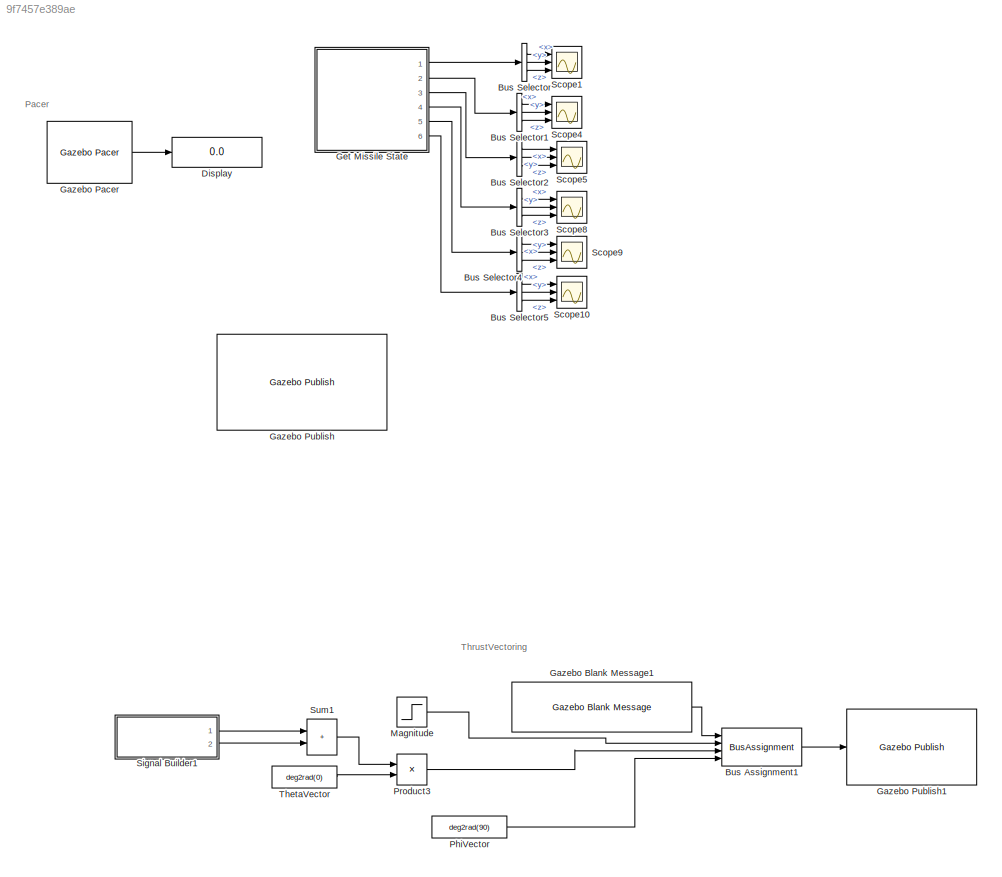
MODEL slx_9f7457e389ae
KIND model
CONFIG AbsTol = auto
CONFIG EnableMultiTasking = off
CONFIG FixedStep = auto
CONFIG MaxStep = auto
CONFIG MinStep = auto
CONFIG RelTol = 1e-3
CONFIG SampleTimeConstraint = Unconstrained
CONFIG SolverName = VariableStepAuto
CONFIG StartTime = 0.0
CONFIG StopTime = 10.0
BLOCK [BusAssignment] Bus Assignment1
  AssignedSignals = r,theta,phi
  Ports = [4, 1]
BLOCK [BusSelector] Bus Selector
  OutputSignals = x,y,z
  Ports = [1, 3]
BLOCK [BusSelector] Bus Selector1
  OutputSignals = x,y,z
  Ports = [1, 3]
BLOCK [BusSelector] Bus Selector2
  OutputSignals = x,y,z
  Ports = [1, 3]
BLOCK [BusSelector] Bus Selector3
  OutputSignals = x,y,z
  Ports = [1, 3]
BLOCK [BusSelector] Bus Selector4
  OutputSignals = x,y,z
  Ports = [1, 3]
BLOCK [BusSelector] Bus Selector5
  OutputSignals = x,y,z
  Ports = [1, 3]
BLOCK [Display] Display
  Decimation = 1
  Ports = [1]
BLOCK [Reference] Gazebo Blank Message1  REF=robotgazebolib/Gazebo Blank Message
  Ports = [0, 1]
  SourceBlock = robotgazebolib/Gazebo Blank Message
  SourceProductBaseCode = RO
  SourceType = Gazebo Blank Message
BLOCK [Reference] Gazebo Pacer  REF=robotgazebolib/Gazebo Pacer
  Ports = [0, 1]
  SourceBlock = robotgazebolib/Gazebo Pacer
  SourceProductBaseCode = RO
  SourceType = Gazebo Pacer
BLOCK [Reference] Gazebo Publish  REF=robotgazebolib/Gazebo Publish
  Ports = [1]
  SourceBlock = robotgazebolib/Gazebo Publish
  SourceProductBaseCode = RO
  SourceType = Gazebo Publish
BLOCK [Reference] Gazebo Publish1  REF=robotgazebolib/Gazebo Publish
  Ports = [1]
  SourceBlock = robotgazebolib/Gazebo Publish
  SourceProductBaseCode = RO
  SourceType = Gazebo Publish
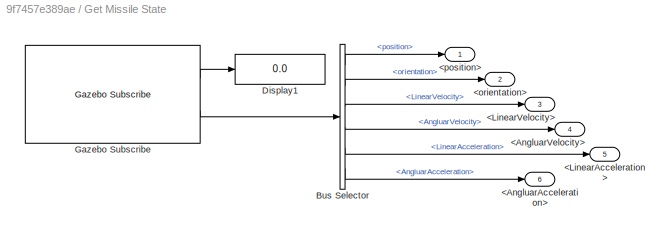
BLOCK [SubSystem] Get Missile State
  Ports = [0, 6]
  RequestExecContextInheritance = off
BLOCK [Outport] Get Missile State/<AngluarAcceleration>
  Port = 6
BLOCK [Outport] Get Missile State/<AngluarVelocity>
  Port = 4
BLOCK [Outport] Get Missile State/<LinearAcceleration>
  Port = 5
BLOCK [Outport] Get Missile State/<LinearVelocity>
  Port = 3
BLOCK [Outport] Get Missile State/<orientation>
  Port = 2
BLOCK [Outport] Get Missile State/<position>
BLOCK [BusSelector] Get Missile State/Bus Selector
  OutputSignals = Pose.position,Pose.orientation,LinearVelocity,AngluarVelocity,LinearAcceleration,AngluarAcceleration
  Ports = [1, 6]
BLOCK [Display] Get Missile State/Display1
  Decimation = 1
  Ports = [1]
BLOCK [Reference] Get Missile State/Gazebo Subscribe  REF=robotgazebolib/Gazebo Subscribe
  Ports = [0, 2]
  SourceBlock = robotgazebolib/Gazebo Subscribe
  SourceProductBaseCode = RO
  SourceType = Gazebo Subscribe
BLOCK [Step] Magnitude
  After = 16000
  Before = 80000
  SampleTime = 0
  Time = 2
BLOCK [Constant] PhiVector
  Value = deg2rad(90)
BLOCK [Product] Product3
  Ports = [2, 1]
BLOCK [Scope] Scope1
  Floating = off
  NumInputPorts = 3
  Ports = [3]
  ScopeSpecificationString = Simulink.scopes.TimeScopeBlockCfg('CurrentConfiguration', extmgr.ConfigurationSet(extmgr.Configuration('Core','General UI',true),extmgr.Configuration('Core','Source UI',true),extmgr.Configuration('Sources','WiredSimulink',true,'DataLoggingVariableName','ScopeData1'),extmgr.Configuration('Visuals','Time Domain',true,'SerializedDisplays',{struct('MinYLimReal','-18344.77689','MaxYLimReal','-14897.008...<+2799ch>
BLOCK [Scope] Scope10
  Floating = off
  NumInputPorts = 3
  Ports = [3]
  ScopeSpecificationString = Simulink.scopes.TimeScopeBlockCfg('CurrentConfiguration', extmgr.ConfigurationSet(extmgr.Configuration('Core','General UI',true),extmgr.Configuration('Core','Source UI',true),extmgr.Configuration('Sources','WiredSimulink',true,'DataLoggingVariableName','ScopeData2'),extmgr.Configuration('Visuals','Time Domain',true,'SerializedDisplays',{struct('MinYLimReal','-37382957417577345706599823385940960826...<+4277ch>
BLOCK [Scope] Scope4
  Floating = off
  NumInputPorts = 3
  Ports = [3]
  ScopeSpecificationString = Simulink.scopes.TimeScopeBlockCfg('CurrentConfiguration', extmgr.ConfigurationSet(extmgr.Configuration('Core','General UI',true),extmgr.Configuration('Core','Source UI',true),extmgr.Configuration('Sources','WiredSimulink',true,'DataLoggingVariableName','ScopeData3'),extmgr.Configuration('Visuals','Time Domain',true,'SerializedDisplays',{struct('MinYLimReal','-0.00028','MaxYLimReal','0.00072','YLab...<+2784ch>
BLOCK [Scope] Scope5
  Floating = off
  NumInputPorts = 3
  Ports = [3]
  ScopeSpecificationString = Simulink.scopes.TimeScopeBlockCfg('CurrentConfiguration', extmgr.ConfigurationSet(extmgr.Configuration('Core','General UI',true),extmgr.Configuration('Core','Source UI',true),extmgr.Configuration('Sources','WiredSimulink',true,'DataLoggingVariableName','ScopeData4'),extmgr.Configuration('Visuals','Time Domain',true,'SerializedDisplays',{struct('MinYLimReal','-14568981323694940144133497020447639315...<+3502ch>
BLOCK [Scope] Scope8
  Floating = off
  NumInputPorts = 3
  Ports = [3]
  ScopeSpecificationString = Simulink.scopes.TimeScopeBlockCfg('CurrentConfiguration', extmgr.ConfigurationSet(extmgr.Configuration('Core','General UI',true),extmgr.Configuration('Core','Source UI',true),extmgr.Configuration('Sources','WiredSimulink',true,'DataLoggingVariableName','ScopeData5'),extmgr.Configuration('Visuals','Time Domain',true,'SerializedDisplays',{struct('MinYLimReal','-33327342911671942417708480477802089603...<+3527ch>
BLOCK [Scope] Scope9
  Floating = off
  NumInputPorts = 3
  Ports = [3]
  ScopeSpecificationString = Simulink.scopes.TimeScopeBlockCfg('CurrentConfiguration', extmgr.ConfigurationSet(extmgr.Configuration('Core','General UI',true),extmgr.Configuration('Core','Source UI',true),extmgr.Configuration('Sources','WiredSimulink',true),extmgr.Configuration('Visuals','Time Domain',true,'SerializedDisplays',{struct('MinYLimReal','-37382957417577345706599823385940960826738676095089848259891126199716039791326...<+4238ch>
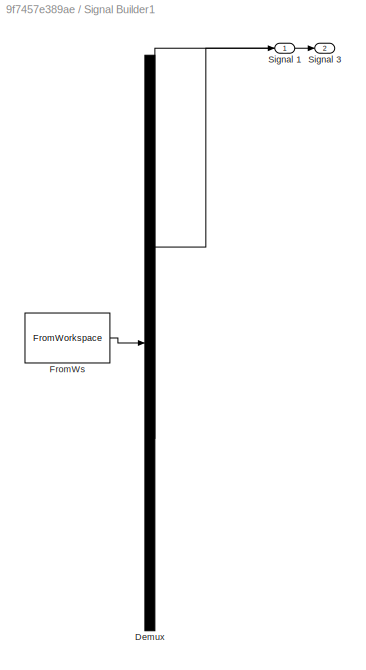
BLOCK [SubSystem] Signal Builder1
  ClipboardFcn = sigbuilder_block('clipboard');
  CloseFcn = sigbuilder_block('close');
  ContinueFcn = sigbuilder_block('continue');
  CopyFcn = sigbuilder_block('copy');
  DeleteFcn = sigbuilder_block('delete');
  LoadFcn = sigbuilder_block('load');
  MaskHideContents = on
  ModelCloseFcn = sigbuilder_block('modelClose');
  NameChangeFcn = sigbuilder_block('namechange');
  OpenFcn = sigbuilder_block('open',[40.5 0 1399.5 658.5 ]);
  PauseFcn = sigbuilder_block('pause');
  Ports = [0, 2]
  PreSaveFcn = sigbuilder_block('preSave');
  RequestExecContextInheritance = off
  StartFcn = sigbuilder_block('start');
  StopFcn = sigbuilder_block('stop');
  Tag = STV Subsys
BLOCK [Demux] Signal Builder1/Demux
  DisplayOption = none
  Outputs = 2
  Ports = [1, 2]
  Tag = STV Demux
BLOCK [FromWorkspace] Signal Builder1/FromWs
  Tag = STV FromWs
  VariableName = tuvar
BLOCK [Outport] Signal Builder1/Signal 1
  Tag = STV Outport
BLOCK [Outport] Signal Builder1/Signal 3
  Port = 2
  Tag = STV Outport
BLOCK [Sum] Sum1
  IconShape = rectangular
  Ports = [2, 1]
BLOCK [Constant] ThetaVector
  Value = deg2rad(0)
ANNOTATION (root): Pacer
ANNOTATION (root): ThrustVectoring
LINE Bus Assignment1:1 -> Gazebo Publish1:1
LINE Bus Selector1:1 -> Scope4:1
LINE Bus Selector1:2 -> Scope4:2
LINE Bus Selector1:3 -> Scope4:3
LINE Bus Selector2:1 -> Scope5:1
LINE Bus Selector2:2 -> Scope5:2
LINE Bus Selector2:3 -> Scope5:3
LINE Bus Selector3:1 -> Scope8:1
LINE Bus Selector3:2 -> Scope8:2
LINE Bus Selector3:3 -> Scope8:3
LINE Bus Selector4:1 -> Scope9:1
LINE Bus Selector4:2 -> Scope9:2
LINE Bus Selector4:3 -> Scope9:3
LINE Bus Selector5:1 -> Scope10:1
LINE Bus Selector5:2 -> Scope10:2
LINE Bus Selector5:3 -> Scope10:3
LINE Bus Selector:1 -> Scope1:1
LINE Bus Selector:2 -> Scope1:2
LINE Bus Selector:3 -> Scope1:3
LINE Gazebo Blank Message1:1 -> Bus Assignment1:1
LINE Gazebo Pacer:1 -> Display:1
LINE Get Missile State/Bus Selector:1 -> Get Missile State/<position>:1
LINE Get Missile State/Bus Selector:2 -> Get Missile State/<orientation>:1
LINE Get Missile State/Bus Selector:3 -> Get Missile State/<LinearVelocity>:1
LINE Get Missile State/Bus Selector:4 -> Get Missile State/<AngluarVelocity>:1
LINE Get Missile State/Bus Selector:5 -> Get Missile State/<LinearAcceleration>:1
LINE Get Missile State/Bus Selector:6 -> Get Missile State/<AngluarAcceleration>:1
LINE Get Missile State/Gazebo Subscribe:1 -> Get Missile State/Display1:1
LINE Get Missile State/Gazebo Subscribe:2 -> Get Missile State/Bus Selector:1
LINE Get Missile State:1 -> Bus Selector:1
LINE Get Missile State:2 -> Bus Selector1:1
LINE Get Missile State:3 -> Bus Selector2:1
LINE Get Missile State:4 -> Bus Selector3:1
LINE Get Missile State:5 -> Bus Selector4:1
LINE Get Missile State:6 -> Bus Selector5:1
LINE Magnitude:1 -> Bus Assignment1:2
LINE PhiVector:1 -> Bus Assignment1:4
LINE Product3:1 -> Bus Assignment1:3
LINE Signal Builder1:1 -> Sum1:1
LINE Signal Builder1:2 -> Sum1:2
LINE Sum1:1 -> Product3:1
LINE ThetaVector:1 -> Product3:2
